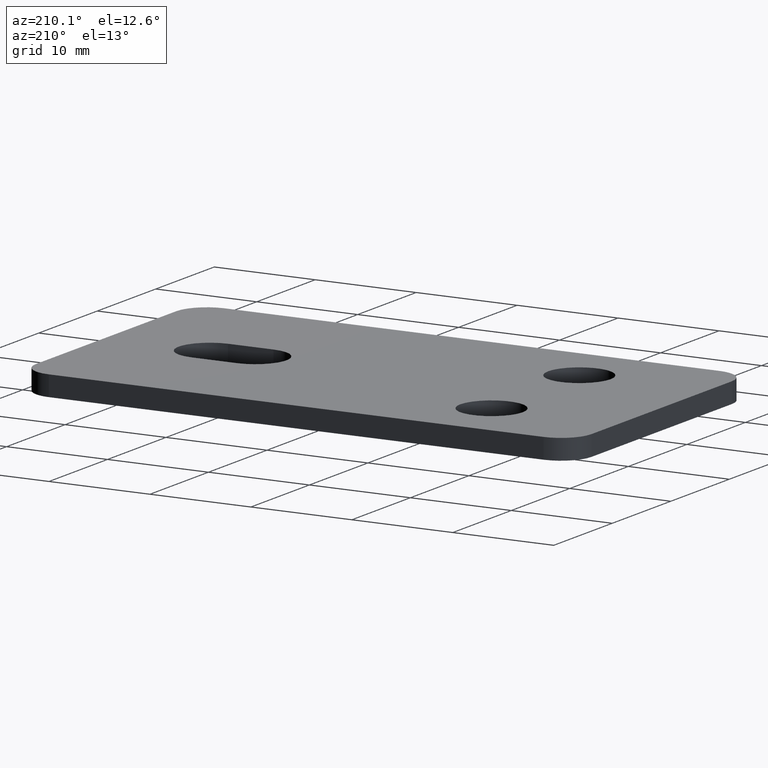
[diagram: clean part render]
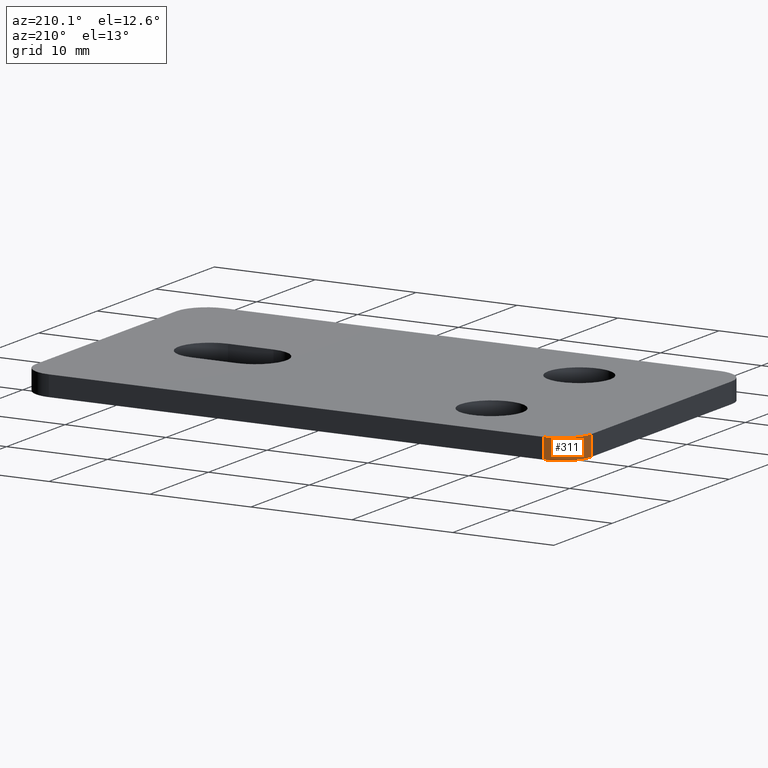
[diagram: same view with one face highlighted and labeled with its STEP entity id]
A machine part, auxiliary view. The second image highlights one B-rep face of the part: STEP entity #311.
In plain terms, the highlighted cylindrical surface (edge-blend (fillet) strip) has radius 3 mm, axis along (0, 0, 1).
Its self-contained STEP definition (entity closure, byte-faithful):
#33=FACE_OUTER_BOUND('',#49,.T.);
#49=EDGE_LOOP('',(#227,#228,#229,#230));
#75=LINE('',#503,#101);
#76=LINE('',#506,#102);
#101=VECTOR('',#407,10.);
#102=VECTOR('',#410,10.);
#123=CIRCLE('',#352,3.);
#124=CIRCLE('',#353,3.);
#145=VERTEX_POINT('',#499);
#146=VERTEX_POINT('',#500);
#147=VERTEX_POINT('',#502);
#148=VERTEX_POINT('',#504);
#179=EDGE_CURVE('',#145,#146,#123,.T.);
#180=EDGE_CURVE('',#146,#147,#75,.T.);
#181=EDGE_CURVE('',#147,#148,#124,.T.);
#182=EDGE_CURVE('',#148,#145,#76,.T.);
#227=ORIENTED_EDGE('',*,*,#179,.T.);
#228=ORIENTED_EDGE('',*,*,#180,.T.);
#229=ORIENTED_EDGE('',*,*,#181,.T.);
#230=ORIENTED_EDGE('',*,*,#182,.T.);
#301=CYLINDRICAL_SURFACE('',#351,3.);
#311=ADVANCED_FACE('',(#33),#301,.T.);
#351=AXIS2_PLACEMENT_3D('',#498,#403,#404);
#352=AXIS2_PLACEMENT_3D('',#501,#405,#406);
#353=AXIS2_PLACEMENT_3D('',#505,#408,#409);
#403=DIRECTION('center_axis',(0.,0.,1.));
#404=DIRECTION('ref_axis',(-0.707106781186549,0.707106781186546,0.));
#405=DIRECTION('center_axis',(0.,0.,-1.));
#406=DIRECTION('ref_axis',(-0.707106781186549,0.707106781186546,0.));
#407=DIRECTION('',(0.,0.,-1.));
#408=DIRECTION('center_axis',(0.,0.,1.));
#409=DIRECTION('ref_axis',(-0.707106781186549,0.707106781186546,0.));
#410=DIRECTION('',(0.,0.,1.));
#498=CARTESIAN_POINT('Origin',(-24.5,12.,0.));
#499=CARTESIAN_POINT('',(-27.5,12.,1.));
#500=CARTESIAN_POINT('',(-24.5,15.,1.));
#501=CARTESIAN_POINT('Origin',(-24.5,12.,1.));
#502=CARTESIAN_POINT('',(-24.5,15.,-1.));
#503=CARTESIAN_POINT('',(-24.5,15.,0.));
#504=CARTESIAN_POINT('',(-27.5,12.,-1.));
#505=CARTESIAN_POINT('Origin',(-24.5,12.,-1.));
#506=CARTESIAN_POINT('',(-27.5,12.,0.));